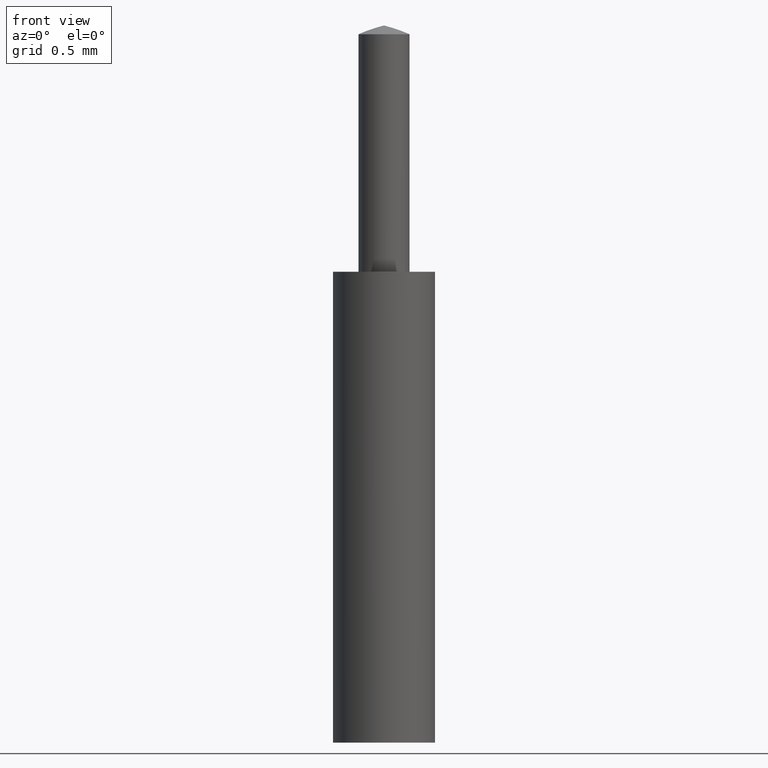
[diagram: clean part render]
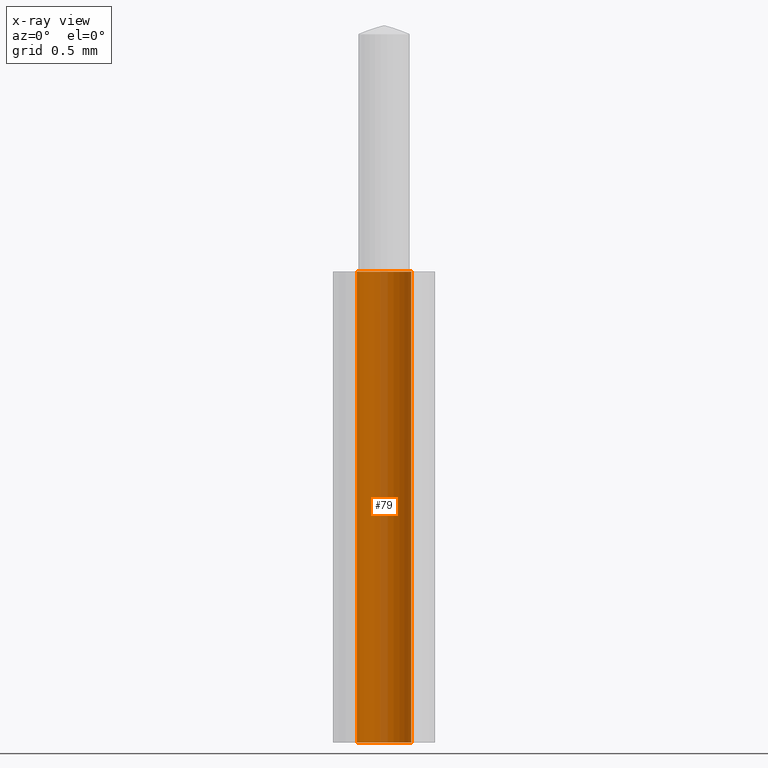
[diagram: x-ray — body ghosted, one internal face saturated and labeled with its STEP entity id]
A machine part, front view, then the same camera in x-ray: the body is ghosted and one INTERNAL B-rep face — a face not visible from any outside direction — is saturated and labeled: STEP entity #79.
In plain terms, the highlighted cylindrical surface (edge-blend (fillet) strip) has radius 0.1358 mm, axis along (-0, -0, -1).
Its self-contained STEP definition (entity closure, byte-faithful):
#24 = AXIS2_PLACEMENT_3D ( 'NONE', #253, #250, #246 ) ;
#38 = AXIS2_PLACEMENT_3D ( 'NONE', #279, #281, #280 ) ;
#40 = AXIS2_PLACEMENT_3D ( 'NONE', #289, #333, #285 ) ;
#49 = EDGE_CURVE ( 'NONE', #180, #158, #182, .T. ) ;
#51 = EDGE_CURVE ( 'NONE', #183, #166, #212, .T. ) ;
#61 = EDGE_CURVE ( 'NONE', #166, #158, #205, .T. ) ;
#63 = EDGE_CURVE ( 'NONE', #183, #180, #133, .T. ) ;
#79 = ADVANCED_FACE ( 'NONE', ( #117 ), #118, .F. ) ;
#117 = FACE_OUTER_BOUND ( 'NONE', #225, .T. ) ;
#118 = CYLINDRICAL_SURFACE ( 'NONE', #24, 0.005345904096558285100 ) ;
#133 = CIRCLE ( 'NONE', #38, 0.005345904096558279900 ) ;
#158 = VERTEX_POINT ( 'NONE', #264 ) ;
#166 = VERTEX_POINT ( 'NONE', #328 ) ;
#180 = VERTEX_POINT ( 'NONE', #330 ) ;
#182 = LINE ( 'NONE', #305, #220 ) ;
#183 = VERTEX_POINT ( 'NONE', #326 ) ;
#186 = ORIENTED_EDGE ( 'NONE', *, *, #61, .T. ) ;
#189 = ORIENTED_EDGE ( 'NONE', *, *, #51, .T. ) ;
#190 = ORIENTED_EDGE ( 'NONE', *, *, #49, .F. ) ;
#191 = ORIENTED_EDGE ( 'NONE', *, *, #63, .F. ) ;
#205 = CIRCLE ( 'NONE', #40, 0.005345904096558290300 ) ;
#206 = VECTOR ( 'NONE', #362, 39.37007874015748100 ) ;
#212 = LINE ( 'NONE', #313, #206 ) ;
#220 = VECTOR ( 'NONE', #302, 39.37007874015748100 ) ;
#225 = EDGE_LOOP ( 'NONE', ( #190, #191, #189, #186 ) ) ;
#246 = DIRECTION ( 'NONE',  ( -1.000000000000000000, 0.0000000000000000000, 0.0000000000000000000 ) ) ;
#250 = DIRECTION ( 'NONE',  ( -0.0000000000000000000, -0.0000000000000000000, -1.000000000000000000 ) ) ;
#253 = CARTESIAN_POINT ( 'NONE',  ( 0.0000000000000000000, 0.0000000000000000000, 0.0000000000000000000 ) ) ;
#264 = CARTESIAN_POINT ( 'NONE',  ( 0.005345904096558289400, 6.546844340398833700E-019, 0.0000000000000000000 ) ) ;
#279 = CARTESIAN_POINT ( 'NONE',  ( 0.0000000000000000000, 0.0000000000000000000, 0.09224620568251602800 ) ) ;
#280 = DIRECTION ( 'NONE',  ( -1.000000000000000000, 0.0000000000000000000, 0.0000000000000000000 ) ) ;
#281 = DIRECTION ( 'NONE',  ( -0.0000000000000000000, -0.0000000000000000000, -1.000000000000000000 ) ) ;
#285 = DIRECTION ( 'NONE',  ( -1.000000000000000000, 0.0000000000000000000, 0.0000000000000000000 ) ) ;
#289 = CARTESIAN_POINT ( 'NONE',  ( 0.0000000000000000000, 0.0000000000000000000, 0.0000000000000000000 ) ) ;
#302 = DIRECTION ( 'NONE',  ( -0.0000000000000000000, -0.0000000000000000000, -1.000000000000000000 ) ) ;
#305 = CARTESIAN_POINT ( 'NONE',  ( 0.005345904096558285100, 6.546844340398827900E-019, 0.0000000000000000000 ) ) ;
#313 = CARTESIAN_POINT ( 'NONE',  ( -0.005345904096558285100, 0.0000000000000000000, 0.0000000000000000000 ) ) ;
#326 = CARTESIAN_POINT ( 'NONE',  ( -0.005345904096558279900, 0.0000000000000000000, 0.09224620568251602800 ) ) ;
#328 = CARTESIAN_POINT ( 'NONE',  ( -0.005345904096558290300, 0.0000000000000000000, 0.0000000000000000000 ) ) ;
#330 = CARTESIAN_POINT ( 'NONE',  ( 0.005345904096558279900, 6.546844340398825000E-019, 0.09224620568251602800 ) ) ;
#333 = DIRECTION ( 'NONE',  ( -0.0000000000000000000, -0.0000000000000000000, -1.000000000000000000 ) ) ;
#362 = DIRECTION ( 'NONE',  ( -0.0000000000000000000, -0.0000000000000000000, -1.000000000000000000 ) ) ;